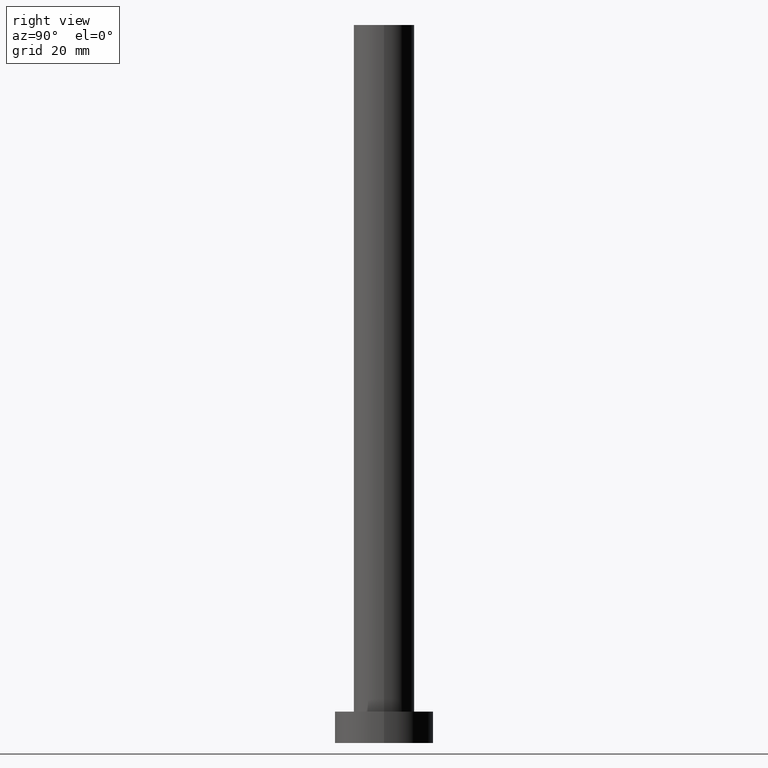
[diagram: clean part render]
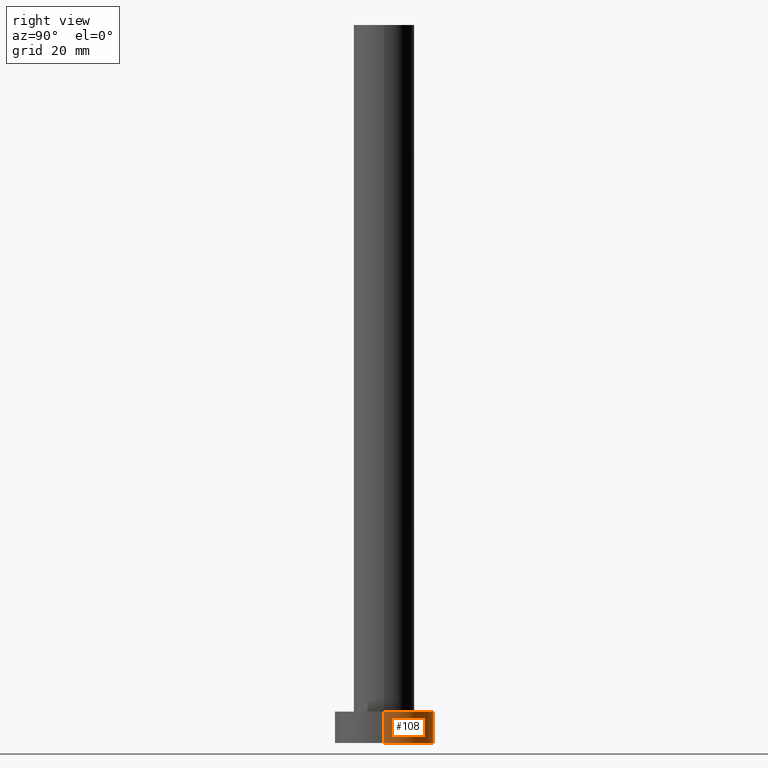
[diagram: same view with one face highlighted and labeled with its STEP entity id]
A machine part, right view. The second image highlights one B-rep face of the part: STEP entity #108.
In plain terms, the highlighted cylindrical surface (partial cylindrical patch) has radius 11 mm, axis along (-0, -0, -1).
Its self-contained STEP definition (entity closure, byte-faithful):
#22 = DIRECTION ( 'NONE',  ( 0.000000000000000000, 0.000000000000000000, 1.000000000000000000 ) ) ;
#37 = DIRECTION ( 'NONE',  ( -0.000000000000000000, -0.000000000000000000, -1.000000000000000000 ) ) ;
#45 = AXIS2_PLACEMENT_3D ( 'NONE', #156, #233, #60 ) ;
#52 = ORIENTED_EDGE ( 'NONE', *, *, #152, .F. ) ;
#53 = EDGE_CURVE ( 'NONE', #225, #229, #117, .T. ) ;
#55 = CIRCLE ( 'NONE', #115, 11.00000000000000000 ) ;
#56 = EDGE_LOOP ( 'NONE', ( #52, #105, #244, #80 ) ) ;
#60 = DIRECTION ( 'NONE',  ( -1.000000000000000000, 0.000000000000000000, 0.000000000000000000 ) ) ;
#70 = EDGE_CURVE ( 'NONE', #191, #92, #132, .T. ) ;
#73 = VECTOR ( 'NONE', #74, 1000.000000000000000 ) ;
#74 = DIRECTION ( 'NONE',  ( -0.000000000000000000, -0.000000000000000000, -1.000000000000000000 ) ) ;
#79 = CYLINDRICAL_SURFACE ( 'NONE', #45, 11.00000000000000000 ) ;
#80 = ORIENTED_EDGE ( 'NONE', *, *, #70, .F. ) ;
#83 = CARTESIAN_POINT ( 'NONE',  ( 11.00000000000000000, 1.347111479062088405E-15, 0.000000000000000000 ) ) ;
#92 = VERTEX_POINT ( 'NONE', #254 ) ;
#105 = ORIENTED_EDGE ( 'NONE', *, *, #53, .T. ) ;
#108 = ADVANCED_FACE ( 'NONE', ( #173 ), #79, .T. ) ;
#115 = AXIS2_PLACEMENT_3D ( 'NONE', #218, #198, #221 ) ;
#117 = LINE ( 'NONE', #176, #73 ) ;
#131 = CIRCLE ( 'NONE', #203, 11.00000000000000000 ) ;
#132 = LINE ( 'NONE', #210, #217 ) ;
#140 = DIRECTION ( 'NONE',  ( 1.000000000000000000, 0.000000000000000000, 0.000000000000000000 ) ) ;
#152 = EDGE_CURVE ( 'NONE', #225, #191, #131, .T. ) ;
#156 = CARTESIAN_POINT ( 'NONE',  ( 0.000000000000000000, 0.000000000000000000, 7.000000000000000000 ) ) ;
#160 = CARTESIAN_POINT ( 'NONE',  ( 11.00000000000000000, 1.347111479062088405E-15, 7.000000000000000000 ) ) ;
#173 = FACE_OUTER_BOUND ( 'NONE', #56, .T. ) ;
#176 = CARTESIAN_POINT ( 'NONE',  ( 11.00000000000000000, 1.347111479062088405E-15, 7.000000000000000000 ) ) ;
#179 = EDGE_CURVE ( 'NONE', #229, #92, #55, .T. ) ;
#182 = CARTESIAN_POINT ( 'NONE',  ( 0.000000000000000000, 0.000000000000000000, 7.000000000000000000 ) ) ;
#191 = VERTEX_POINT ( 'NONE', #235 ) ;
#198 = DIRECTION ( 'NONE',  ( 0.000000000000000000, 0.000000000000000000, 1.000000000000000000 ) ) ;
#203 = AXIS2_PLACEMENT_3D ( 'NONE', #182, #22, #140 ) ;
#210 = CARTESIAN_POINT ( 'NONE',  ( -11.00000000000000000, 0.000000000000000000, 7.000000000000000000 ) ) ;
#217 = VECTOR ( 'NONE', #37, 1000.000000000000000 ) ;
#218 = CARTESIAN_POINT ( 'NONE',  ( 0.000000000000000000, 0.000000000000000000, 0.000000000000000000 ) ) ;
#221 = DIRECTION ( 'NONE',  ( 1.000000000000000000, 0.000000000000000000, 0.000000000000000000 ) ) ;
#225 = VERTEX_POINT ( 'NONE', #160 ) ;
#229 = VERTEX_POINT ( 'NONE', #83 ) ;
#233 = DIRECTION ( 'NONE',  ( -0.000000000000000000, -0.000000000000000000, -1.000000000000000000 ) ) ;
#235 = CARTESIAN_POINT ( 'NONE',  ( -11.00000000000000000, 0.000000000000000000, 7.000000000000000000 ) ) ;
#244 = ORIENTED_EDGE ( 'NONE', *, *, #179, .T. ) ;
#254 = CARTESIAN_POINT ( 'NONE',  ( -11.00000000000000000, 0.000000000000000000, 0.000000000000000000 ) ) ;